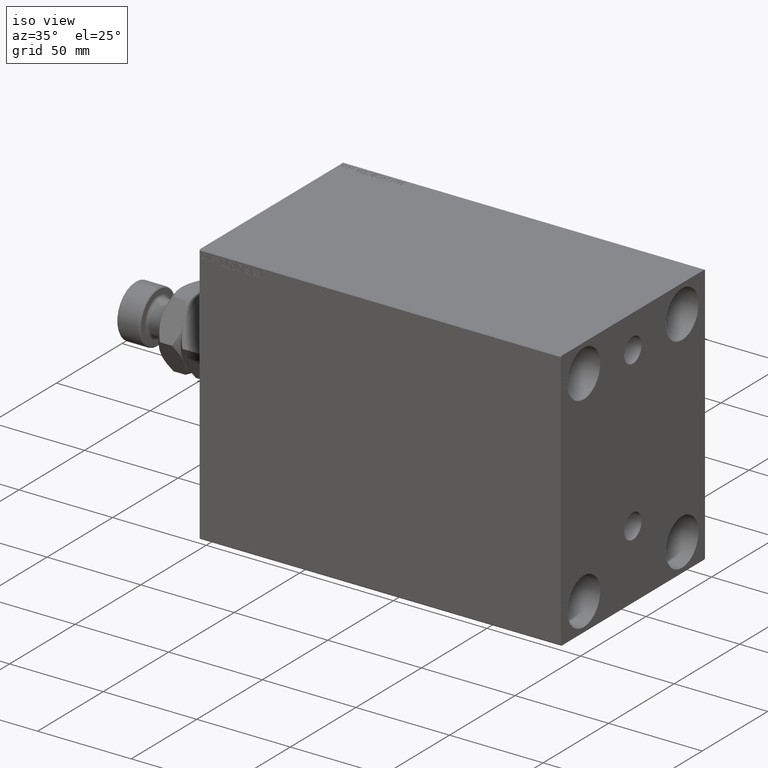
[diagram: clean part render]
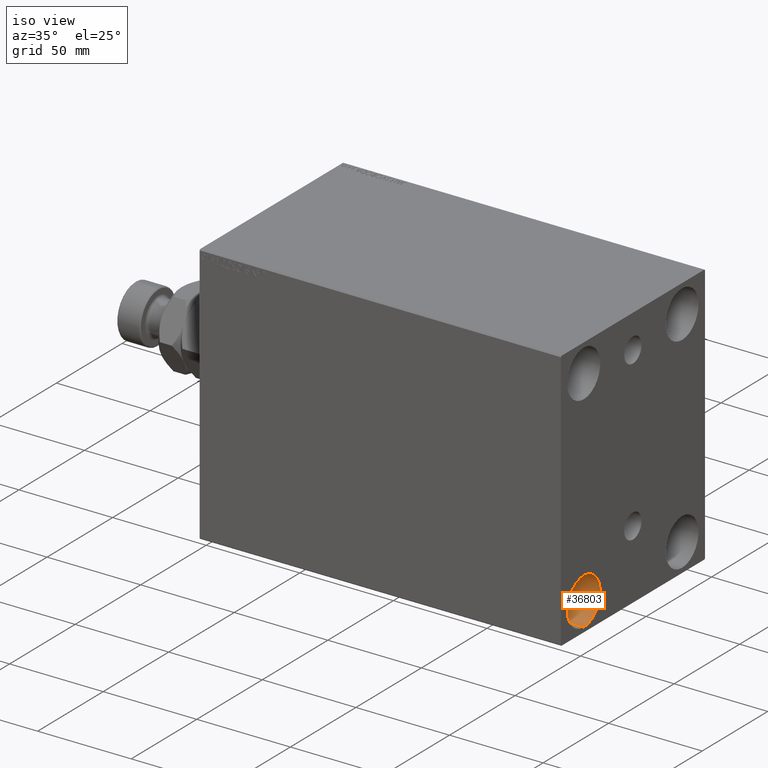
[diagram: same view with one face highlighted and labeled with its STEP entity id]
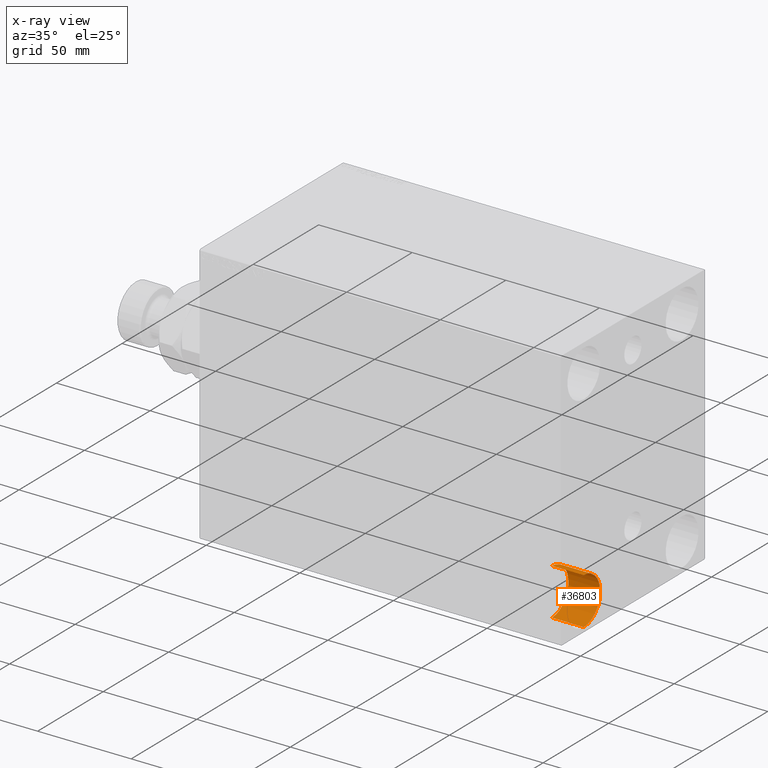
[diagram: x-ray of the same camera — body ghosted, the highlighted face saturated]
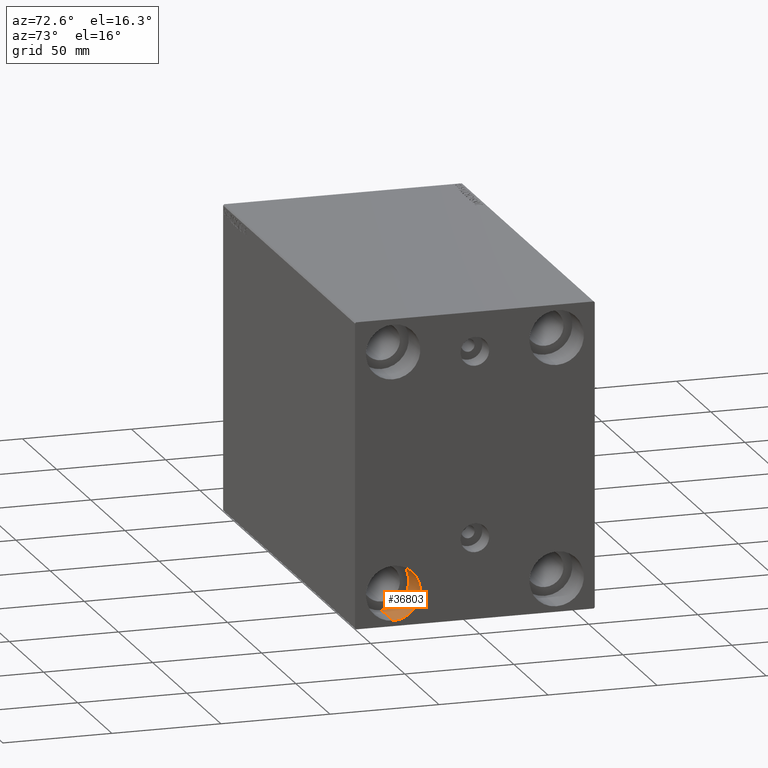
[diagram: same view with one face highlighted and labeled with its STEP entity id]
A machine part, iso view. The second image highlights one B-rep face of the part: STEP entity #36803.
The next image is the same camera in x-ray: the body ghosted, the highlighted face saturated — about 0% of this face is hidden behind the body in this view.
A second angle (auxiliary view) of the same face is appended — the face is thin or edge-on in the first view.
In plain terms, the highlighted cylindrical surface (edge-blend (fillet) strip) has radius 12.5 mm, axis along (1, 0, 0).
Its self-contained STEP definition (entity closure, byte-faithful):
#240 = ORIENTED_EDGE ( 'NONE', *, *, #16538, .T. ) ;
#1396 = CARTESIAN_POINT ( 'NONE',  ( 176.0000000000000000, -37.50000000000002132, -67.49999999999998579 ) ) ;
#1727 = CYLINDRICAL_SURFACE ( 'NONE', #27937, 12.49999999999999645 ) ;
#3169 = VERTEX_POINT ( 'NONE', #9656 ) ;
#7061 = LINE ( 'NONE', #21092, #17902 ) ;
#8877 = DIRECTION ( 'NONE',  ( 1.000000000000000000, -0.000000000000000000, -0.000000000000000000 ) ) ;
#9656 = CARTESIAN_POINT ( 'NONE',  ( 176.0000000000000000, -37.50000000000002132, -42.49999999999999289 ) ) ;
#11244 = EDGE_CURVE ( 'NONE', #3169, #17060, #12954, .T. ) ;
#11714 = DIRECTION ( 'NONE',  ( -1.000000000000000000, -0.000000000000000000, -0.000000000000000000 ) ) ;
#12169 = CARTESIAN_POINT ( 'NONE',  ( 193.0000000000000000, -37.50000000000002132, -54.99999999999999289 ) ) ;
#12954 = CIRCLE ( 'NONE', #18823, 12.49999999999999645 ) ;
#13691 = DIRECTION ( 'NONE',  ( 0.000000000000000000, 0.000000000000000000, -1.000000000000000000 ) ) ;
#14199 = EDGE_LOOP ( 'NONE', ( #38976, #16418, #240, #32079 ) ) ;
#16096 = VECTOR ( 'NONE', #26522, 1000.000000000000000 ) ;
#16418 = ORIENTED_EDGE ( 'NONE', *, *, #11244, .T. ) ;
#16538 = EDGE_CURVE ( 'NONE', #17060, #31997, #7061, .T. ) ;
#17060 = VERTEX_POINT ( 'NONE', #1396 ) ;
#17902 = VECTOR ( 'NONE', #22905, 1000.000000000000000 ) ;
#18823 = AXIS2_PLACEMENT_3D ( 'NONE', #31959, #25725, #22268 ) ;
#21092 = CARTESIAN_POINT ( 'NONE',  ( 176.0000000000000000, -37.50000000000002132, -67.49999999999998579 ) ) ;
#22120 = EDGE_CURVE ( 'NONE', #40051, #31997, #22505, .T. ) ;
#22268 = DIRECTION ( 'NONE',  ( 0.000000000000000000, 0.000000000000000000, 1.000000000000000000 ) ) ;
#22505 = CIRCLE ( 'NONE', #40878, 12.49999999999999645 ) ;
#22905 = DIRECTION ( 'NONE',  ( 1.000000000000000000, -0.000000000000000000, -0.000000000000000000 ) ) ;
#25725 = DIRECTION ( 'NONE',  ( -1.000000000000000000, -0.000000000000000000, -0.000000000000000000 ) ) ;
#26297 = CARTESIAN_POINT ( 'NONE',  ( 176.0000000000000000, -37.50000000000002132, -42.49999999999999289 ) ) ;
#26522 = DIRECTION ( 'NONE',  ( 1.000000000000000000, -0.000000000000000000, -0.000000000000000000 ) ) ;
#27937 = AXIS2_PLACEMENT_3D ( 'NONE', #40401, #8877, #13691 ) ;
#31298 = CARTESIAN_POINT ( 'NONE',  ( 193.0000000000000000, -37.50000000000002132, -42.49999999999999289 ) ) ;
#31959 = CARTESIAN_POINT ( 'NONE',  ( 176.0000000000000000, -37.50000000000002132, -54.99999999999999289 ) ) ;
#31997 = VERTEX_POINT ( 'NONE', #33797 ) ;
#32079 = ORIENTED_EDGE ( 'NONE', *, *, #22120, .F. ) ;
#33271 = FACE_OUTER_BOUND ( 'NONE', #14199, .T. ) ;
#33797 = CARTESIAN_POINT ( 'NONE',  ( 193.0000000000000000, -37.50000000000002132, -67.49999999999998579 ) ) ;
#34884 = EDGE_CURVE ( 'NONE', #3169, #40051, #37111, .T. ) ;
#36803 = ADVANCED_FACE ( 'NONE', ( #33271 ), #1727, .F. ) ;
#37111 = LINE ( 'NONE', #26297, #16096 ) ;
#38976 = ORIENTED_EDGE ( 'NONE', *, *, #34884, .F. ) ;
#40051 = VERTEX_POINT ( 'NONE', #31298 ) ;
#40401 = CARTESIAN_POINT ( 'NONE',  ( 176.0000000000000000, -37.50000000000002132, -54.99999999999999289 ) ) ;
#40878 = AXIS2_PLACEMENT_3D ( 'NONE', #12169, #11714, #43020 ) ;
#43020 = DIRECTION ( 'NONE',  ( 0.000000000000000000, 0.000000000000000000, 1.000000000000000000 ) ) ;